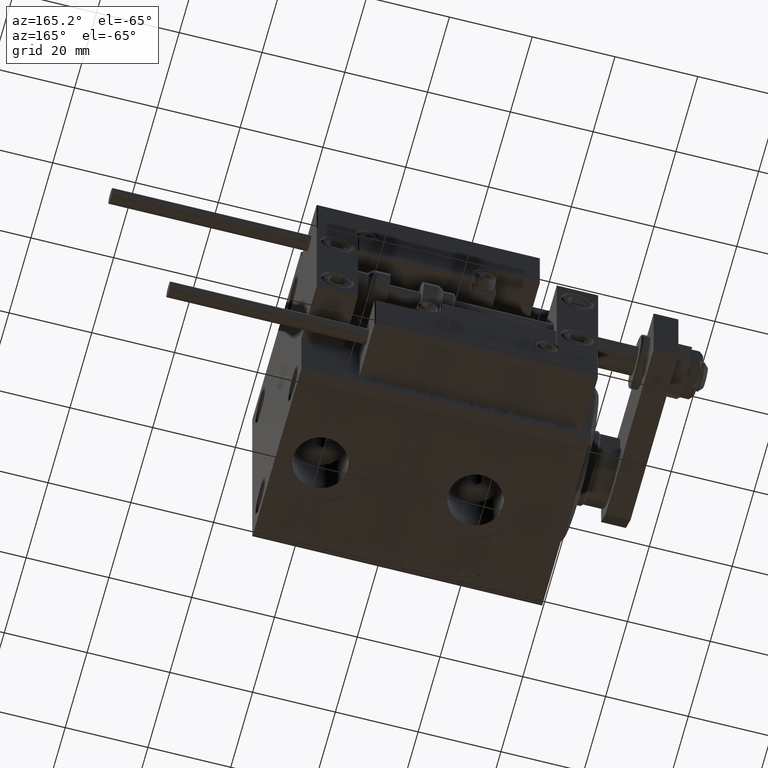
[diagram: clean part render]
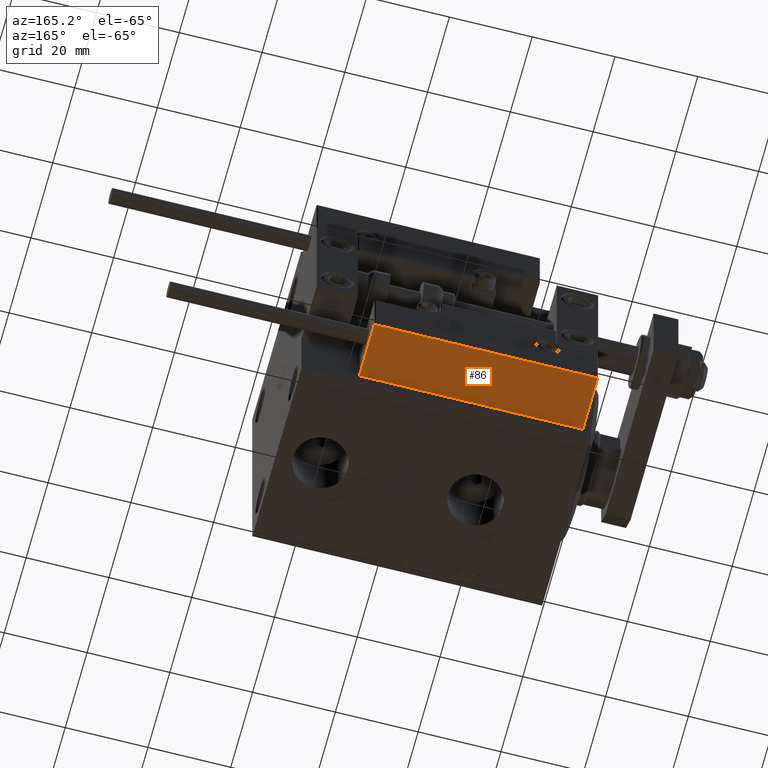
[diagram: same view with one face highlighted and labeled with its STEP entity id]
A machine part, auxiliary view. The second image highlights one B-rep face of the part: STEP entity #86.
In plain terms, the highlighted planar face has unit normal (0, 0, 1).
Its self-contained STEP definition (entity closure, byte-faithful):
#86 = ADVANCED_FACE ( 'NONE', ( #36842 ), #15849, .F. ) ;
#3949 = CARTESIAN_POINT ( 'NONE',  ( -26.99999999999993605, 20.00000000000002132, 14.00000000000000000 ) ) ;
#9002 = ORIENTED_EDGE ( 'NONE', *, *, #21641, .F. ) ;
#10335 = CARTESIAN_POINT ( 'NONE',  ( 27.00000000000006395, 20.00000000000001776, 13.70000000000000107 ) ) ;
#10860 = VERTEX_POINT ( 'NONE', #14358 ) ;
#11357 = CARTESIAN_POINT ( 'NONE',  ( 27.00000000000006395, 20.00000000000001776, 0.000000000000000000 ) ) ;
#11917 = DIRECTION ( 'NONE',  ( -0.000000000000000000, -0.000000000000000000, -1.000000000000000000 ) ) ;
#12390 = CARTESIAN_POINT ( 'NONE',  ( 27.00000000000006395, 20.00000000000001776, 14.00000000000000000 ) ) ;
#13766 = VECTOR ( 'NONE', #52552, 1000.000000000000000 ) ;
#14358 = CARTESIAN_POINT ( 'NONE',  ( -26.99999999999993605, 20.00000000000002132, 13.70000000000000107 ) ) ;
#15152 = CARTESIAN_POINT ( 'NONE',  ( 27.00000000000006395, 20.00000000000001776, 0.000000000000000000 ) ) ;
#15664 = EDGE_CURVE ( 'NONE', #38384, #49742, #43832, .T. ) ;
#15849 = PLANE ( 'NONE',  #49529 ) ;
#17426 = LINE ( 'NONE', #3949, #22550 ) ;
#18850 = LINE ( 'NONE', #10335, #25389 ) ;
#20118 = DIRECTION ( 'NONE',  ( -6.424901762877063495E-17, -1.000000000000000000, 0.000000000000000000 ) ) ;
#21641 = EDGE_CURVE ( 'NONE', #10860, #31966, #17426, .T. ) ;
#22550 = VECTOR ( 'NONE', #32377, 1000.000000000000000 ) ;
#23022 = EDGE_LOOP ( 'NONE', ( #9002, #48611, #46071, #51446 ) ) ;
#25389 = VECTOR ( 'NONE', #50749, 1000.000000000000000 ) ;
#27891 = CARTESIAN_POINT ( 'NONE',  ( -26.99999999999993605, 20.00000000000002132, 0.000000000000000000 ) ) ;
#31966 = VERTEX_POINT ( 'NONE', #27891 ) ;
#32377 = DIRECTION ( 'NONE',  ( -0.000000000000000000, -0.000000000000000000, -1.000000000000000000 ) ) ;
#36069 = LINE ( 'NONE', #11357, #13766 ) ;
#36309 = DIRECTION ( 'NONE',  ( 1.000000000000000000, -6.424901762877063495E-17, 0.000000000000000000 ) ) ;
#36842 = FACE_OUTER_BOUND ( 'NONE', #23022, .T. ) ;
#37038 = EDGE_CURVE ( 'NONE', #49742, #31966, #36069, .T. ) ;
#38357 = EDGE_CURVE ( 'NONE', #10860, #38384, #18850, .T. ) ;
#38384 = VERTEX_POINT ( 'NONE', #47278 ) ;
#40095 = CARTESIAN_POINT ( 'NONE',  ( 27.00000000000006395, 20.00000000000001776, 14.00000000000000000 ) ) ;
#43832 = LINE ( 'NONE', #40095, #44538 ) ;
#44538 = VECTOR ( 'NONE', #11917, 1000.000000000000000 ) ;
#46071 = ORIENTED_EDGE ( 'NONE', *, *, #15664, .T. ) ;
#47278 = CARTESIAN_POINT ( 'NONE',  ( 27.00000000000006395, 20.00000000000001776, 13.70000000000000107 ) ) ;
#48611 = ORIENTED_EDGE ( 'NONE', *, *, #38357, .T. ) ;
#49529 = AXIS2_PLACEMENT_3D ( 'NONE', #12390, #20118, #36309 ) ;
#49742 = VERTEX_POINT ( 'NONE', #15152 ) ;
#50749 = DIRECTION ( 'NONE',  ( 1.000000000000000000, -6.424901762877063495E-17, -0.000000000000000000 ) ) ;
#51446 = ORIENTED_EDGE ( 'NONE', *, *, #37038, .T. ) ;
#52552 = DIRECTION ( 'NONE',  ( -1.000000000000000000, 6.424901762877062263E-17, 0.000000000000000000 ) ) ;